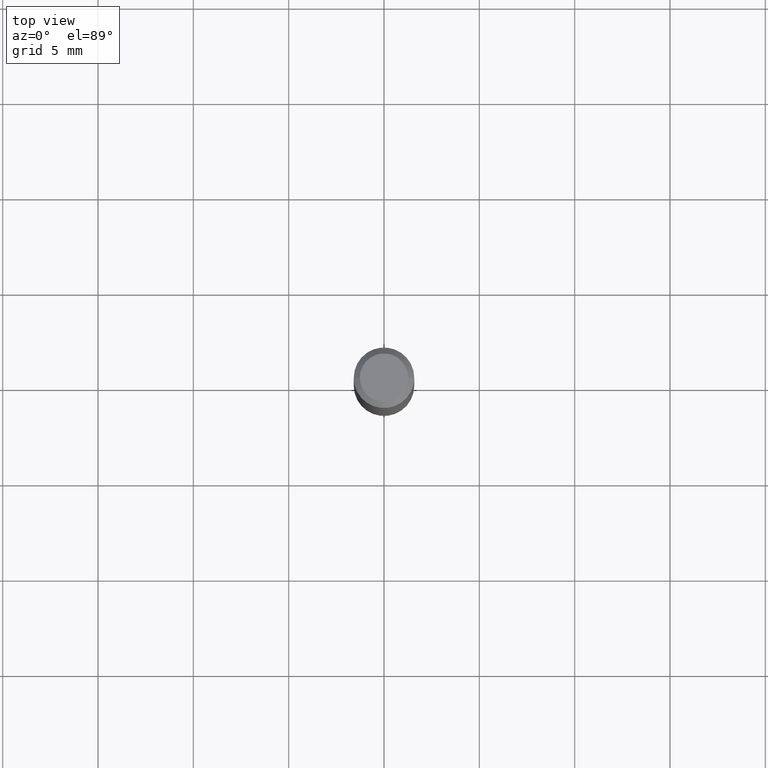
[diagram: clean part render]
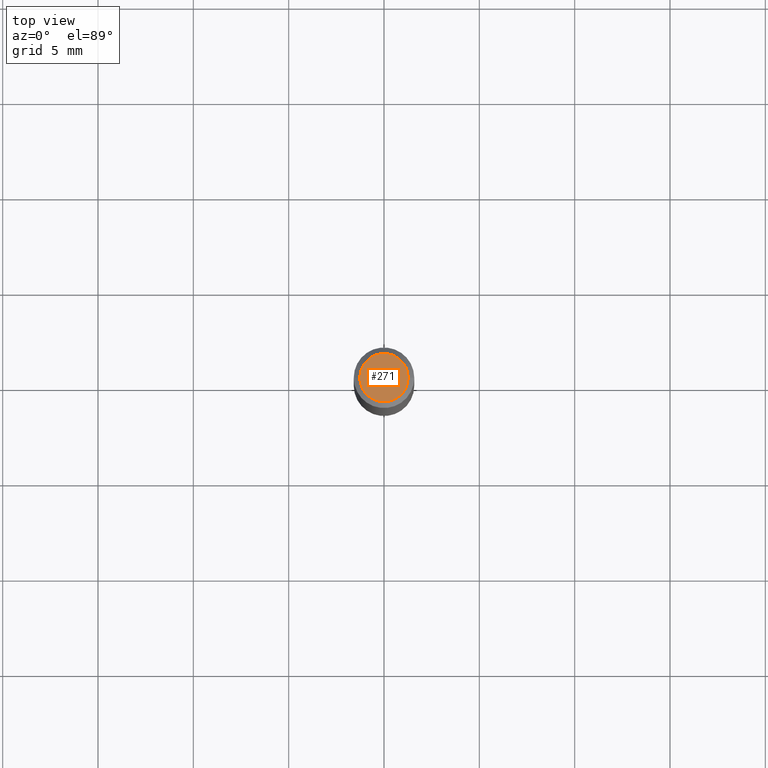
[diagram: same view with one face highlighted and labeled with its STEP entity id]
A machine part, top view. The second image highlights one B-rep face of the part: STEP entity #271.
In plain terms, the highlighted planar face has unit normal (0, -0, -1).
Its self-contained STEP definition (entity closure, byte-faithful):
#13 = FACE_OUTER_BOUND ( 'NONE', #293, .T. ) ;
#17 = DIRECTION ( 'NONE',  ( -1.000000000000000000, 6.982962677686265922E-15, -4.876176775795935793E-29 ) ) ;
#81 = CIRCLE ( 'NONE', #189, 0.04999999999999999584 ) ;
#123 = PLANE ( 'NONE',  #277 ) ;
#150 = CIRCLE ( 'NONE', #310, 0.04999999999999999584 ) ;
#167 = CARTESIAN_POINT ( 'NONE',  ( 0.04999999999999999584, -4.077247707424184705E-16, -1.592040838888913461E-18 ) ) ;
#186 = DIRECTION ( 'NONE',  ( 1.000000000000000000, -6.982962677686265922E-15, 4.875957971899673662E-29 ) ) ;
#189 = AXIS2_PLACEMENT_3D ( 'NONE', #314, #465, #422 ) ;
#191 = VERTEX_POINT ( 'NONE', #207 ) ;
#196 = EDGE_CURVE ( 'NONE', #264, #191, #150, .T. ) ;
#202 = DIRECTION ( 'NONE',  ( 2.438088387897960049E-29, -3.491481338843145188E-15, -1.000000000000000000 ) ) ;
#207 = CARTESIAN_POINT ( 'NONE',  ( -0.04999999999999999584, 3.709698922520826725E-16, -1.592040838894077649E-18 ) ) ;
#264 = VERTEX_POINT ( 'NONE', #167 ) ;
#271 = ADVANCED_FACE ( 'NONE', ( #13 ), #123, .F. ) ;
#277 = AXIS2_PLACEMENT_3D ( 'NONE', #428, #202, #17 ) ;
#293 = EDGE_LOOP ( 'NONE', ( #365, #470 ) ) ;
#306 = EDGE_CURVE ( 'NONE', #191, #264, #81, .T. ) ;
#310 = AXIS2_PLACEMENT_3D ( 'NONE', #487, #453, #186 ) ;
#314 = CARTESIAN_POINT ( 'NONE',  ( 3.893286209682126177E-47, -5.558580879666067980E-33, -1.592040838891559689E-18 ) ) ;
#365 = ORIENTED_EDGE ( 'NONE', *, *, #306, .T. ) ;
#422 = DIRECTION ( 'NONE',  ( 1.000000000000000000, -6.982962677686265922E-15, 4.875957971899673662E-29 ) ) ;
#428 = CARTESIAN_POINT ( 'NONE',  ( 1.946643104841063088E-47, -2.779290439833033990E-33, -7.960204194457798443E-19 ) ) ;
#453 = DIRECTION ( 'NONE',  ( -2.445468806185136597E-29, 3.491481338843145583E-15, 1.000000000000000000 ) ) ;
#465 = DIRECTION ( 'NONE',  ( -2.445468806185136597E-29, 3.491481338843145583E-15, 1.000000000000000000 ) ) ;
#470 = ORIENTED_EDGE ( 'NONE', *, *, #196, .T. ) ;
#487 = CARTESIAN_POINT ( 'NONE',  ( 3.893286209682126177E-47, -5.558580879666067980E-33, -1.592040838891559689E-18 ) ) ;